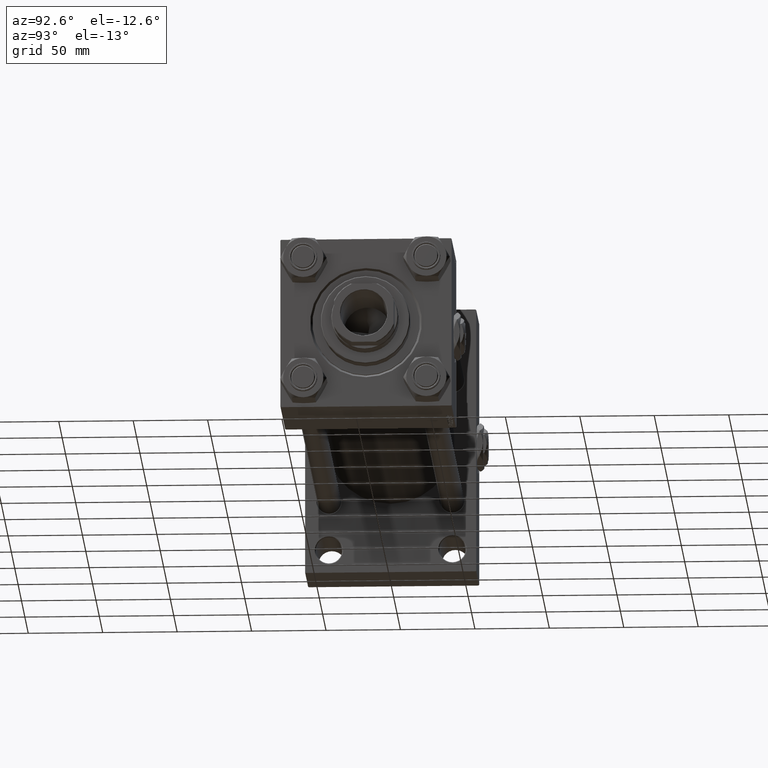
[diagram: clean part render]
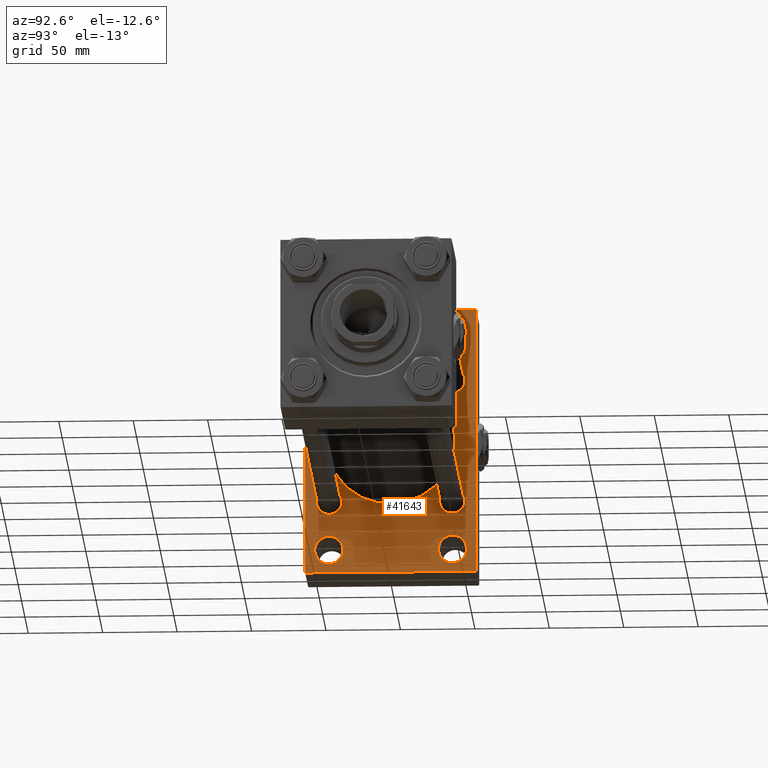
[diagram: same view with one face highlighted and labeled with its STEP entity id]
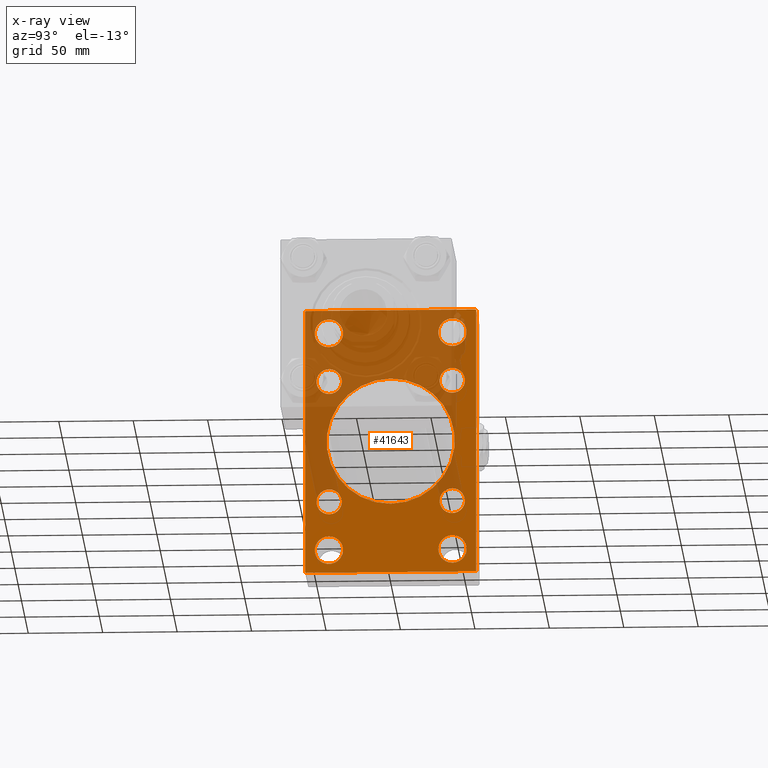
[diagram: x-ray of the same camera — body ghosted, the highlighted face saturated]
A machine part, auxiliary view. The second image highlights one B-rep face of the part: STEP entity #41643.
The next image is the same camera in x-ray: the body ghosted, the highlighted face saturated — about 48% of this face is hidden behind the body in this view.
In plain terms, the highlighted planar face has unit normal (-1, 0, 0).
Its self-contained STEP definition (entity closure, byte-faithful):
#151 = EDGE_CURVE ( 'NONE', #28061, #30598, #42466, .T. ) ;
#724 = CIRCLE ( 'NONE', #51602, 9.500000000000063949 ) ;
#966 = DIRECTION ( 'NONE',  ( -1.000000000000000000, 0.000000000000000000, -0.000000000000000000 ) ) ;
#1104 = CIRCLE ( 'NONE', #39231, 9.500000000000063949 ) ;
#1321 = EDGE_LOOP ( 'NONE', ( #48163, #22547 ) ) ;
#1960 = VECTOR ( 'NONE', #10304, 1000.000000000000000 ) ;
#2055 = CARTESIAN_POINT ( 'NONE',  ( 44.00000000000000000, 41.50000000000000711, 64.99999999999992895 ) ) ;
#2156 = LINE ( 'NONE', #41987, #17698 ) ;
#2229 = CARTESIAN_POINT ( 'NONE',  ( 43.99999999999998579, 2.663896022368408223E-15, -43.00000000000000000 ) ) ;
#2326 = CARTESIAN_POINT ( 'NONE',  ( 44.00000000000000000, -41.34999999999998721, 41.35000000000000853 ) ) ;
#2874 = CARTESIAN_POINT ( 'NONE',  ( 44.00000000000000000, 41.50000000000000711, -65.00000000000009948 ) ) ;
#2896 = AXIS2_PLACEMENT_3D ( 'NONE', #16641, #20630, #52248 ) ;
#2916 = AXIS2_PLACEMENT_3D ( 'NONE', #16988, #24695, #48611 ) ;
#2981 = AXIS2_PLACEMENT_3D ( 'NONE', #4252, #20426, #19889 ) ;
#3075 = CARTESIAN_POINT ( 'NONE',  ( 44.00000000000000000, 41.50000000000000711, 74.50000000000000000 ) ) ;
#3684 = FACE_OUTER_BOUND ( 'NONE', #10005, .T. ) ;
#3738 = EDGE_CURVE ( 'NONE', #51293, #32303, #34297, .T. ) ;
#3743 = EDGE_LOOP ( 'NONE', ( #34602, #31345 ) ) ;
#3875 = AXIS2_PLACEMENT_3D ( 'NONE', #6716, #14421, #51849 ) ;
#3909 = CIRCLE ( 'NONE', #36959, 8.500000000000007105 ) ;
#3968 = CIRCLE ( 'NONE', #49757, 8.500000000000007105 ) ;
#4115 = EDGE_CURVE ( 'NONE', #20034, #8645, #24970, .T. ) ;
#4252 = CARTESIAN_POINT ( 'NONE',  ( 44.00000000000000000, -41.34999999999998721, -41.35000000000000853 ) ) ;
#4348 = LINE ( 'NONE', #17065, #20033 ) ;
#4468 = VERTEX_POINT ( 'NONE', #10902 ) ;
#4519 = EDGE_CURVE ( 'NONE', #36005, #42173, #15628, .T. ) ;
#5057 = VERTEX_POINT ( 'NONE', #33940 ) ;
#5083 = EDGE_CURVE ( 'NONE', #35382, #34785, #47081, .T. ) ;
#5244 = CARTESIAN_POINT ( 'NONE',  ( 44.00000000000000000, -56.99999999999998579, -90.00000000000002842 ) ) ;
#5338 = ORIENTED_EDGE ( 'NONE', *, *, #4115, .T. ) ;
#6118 = ORIENTED_EDGE ( 'NONE', *, *, #151, .F. ) ;
#6554 = EDGE_CURVE ( 'NONE', #14966, #12991, #44575, .T. ) ;
#6620 = CARTESIAN_POINT ( 'NONE',  ( 44.00000000000000000, -57.49999999999999289, 89.50000000000001421 ) ) ;
#6716 = CARTESIAN_POINT ( 'NONE',  ( 44.00000000000000000, -41.50000000000000000, -74.50000000000000000 ) ) ;
#6842 = EDGE_CURVE ( 'NONE', #10500, #45635, #8098, .T. ) ;
#6987 = DIRECTION ( 'NONE',  ( -1.000000000000000000, 0.000000000000000000, -0.000000000000000000 ) ) ;
#7246 = DIRECTION ( 'NONE',  ( 0.000000000000000000, 0.000000000000000000, 1.000000000000000000 ) ) ;
#7450 = EDGE_CURVE ( 'NONE', #8354, #4468, #3909, .T. ) ;
#7985 = VERTEX_POINT ( 'NONE', #2055 ) ;
#7989 = ORIENTED_EDGE ( 'NONE', *, *, #43664, .T. ) ;
#8098 = CIRCLE ( 'NONE', #38616, 9.499999999999896971 ) ;
#8220 = CARTESIAN_POINT ( 'NONE',  ( 44.00000000000000000, -41.34999999999998721, 32.85000000000000142 ) ) ;
#8354 = VERTEX_POINT ( 'NONE', #39132 ) ;
#8523 = EDGE_CURVE ( 'NONE', #50140, #41739, #4348, .T. ) ;
#8580 = CIRCLE ( 'NONE', #49308, 8.500000000000007105 ) ;
#8645 = VERTEX_POINT ( 'NONE', #26360 ) ;
#9357 = DIRECTION ( 'NONE',  ( 0.000000000000000000, 0.7071067811865622277, -0.7071067811865328068 ) ) ;
#9402 = VERTEX_POINT ( 'NONE', #10668 ) ;
#9928 = DIRECTION ( 'NONE',  ( 0.000000000000000000, 0.000000000000000000, 1.000000000000000000 ) ) ;
#9959 = EDGE_LOOP ( 'NONE', ( #19303, #34629 ) ) ;
#10005 = EDGE_LOOP ( 'NONE', ( #44249, #31271, #6118, #24680, #7989, #20861, #46266, #17208 ) ) ;
#10109 = EDGE_CURVE ( 'NONE', #12991, #14966, #17583, .T. ) ;
#10304 = DIRECTION ( 'NONE',  ( 0.000000000000000000, 0.000000000000000000, -1.000000000000000000 ) ) ;
#10500 = VERTEX_POINT ( 'NONE', #2874 ) ;
#10668 = CARTESIAN_POINT ( 'NONE',  ( 44.00000000000000000, -57.00000000000001421, 89.99999999999998579 ) ) ;
#10902 = CARTESIAN_POINT ( 'NONE',  ( 44.00000000000000000, 41.34999999999999432, -32.84999999999999432 ) ) ;
#11361 = PLANE ( 'NONE',  #23533 ) ;
#11390 = AXIS2_PLACEMENT_3D ( 'NONE', #22337, #21284, #37487 ) ;
#11812 = CARTESIAN_POINT ( 'NONE',  ( 44.00000000000000000, -41.34999999999998721, 41.35000000000000853 ) ) ;
#11901 = DIRECTION ( 'NONE',  ( -1.000000000000000000, 0.000000000000000000, -0.000000000000000000 ) ) ;
#11904 = FACE_BOUND ( 'NONE', #47612, .T. ) ;
#11983 = DIRECTION ( 'NONE',  ( -0.000000000000000000, -0.7071067811865524577, -0.7071067811865426878 ) ) ;
#12435 = CARTESIAN_POINT ( 'NONE',  ( 44.00000000000000000, -41.34999999999998721, -32.85000000000000142 ) ) ;
#12991 = VERTEX_POINT ( 'NONE', #46597 ) ;
#13076 = VECTOR ( 'NONE', #48279, 1000.000000000000000 ) ;
#13274 = DIRECTION ( 'NONE',  ( -1.000000000000000000, 0.000000000000000000, -0.000000000000000000 ) ) ;
#13414 = ORIENTED_EDGE ( 'NONE', *, *, #23437, .T. ) ;
#13600 = DIRECTION ( 'NONE',  ( 0.000000000000000000, 0.000000000000000000, 1.000000000000000000 ) ) ;
#13629 = CIRCLE ( 'NONE', #41609, 9.499999999999896971 ) ;
#13750 = DIRECTION ( 'NONE',  ( 0.000000000000000000, 0.000000000000000000, 1.000000000000000000 ) ) ;
#13760 = EDGE_LOOP ( 'NONE', ( #24981, #28437 ) ) ;
#14261 = VECTOR ( 'NONE', #11983, 1000.000000000000000 ) ;
#14357 = CARTESIAN_POINT ( 'NONE',  ( 44.00000000000000000, 41.50000000000000711, -74.50000000000000000 ) ) ;
#14421 = DIRECTION ( 'NONE',  ( -1.000000000000000000, 0.000000000000000000, -0.000000000000000000 ) ) ;
#14542 = DIRECTION ( 'NONE',  ( 0.000000000000000000, -0.7071067811865279218, 0.7071067811865672237 ) ) ;
#14673 = EDGE_CURVE ( 'NONE', #36244, #30598, #25149, .T. ) ;
#14966 = VERTEX_POINT ( 'NONE', #32473 ) ;
#15379 = AXIS2_PLACEMENT_3D ( 'NONE', #2326, #42682, #34175 ) ;
#15628 = CIRCLE ( 'NONE', #2916, 8.500000000000007105 ) ;
#15868 = DIRECTION ( 'NONE',  ( 0.000000000000000000, 0.000000000000000000, 1.000000000000000000 ) ) ;
#15872 = DIRECTION ( 'NONE',  ( -0.000000000000000000, 0.000000000000000000, 1.000000000000000000 ) ) ;
#16225 = LINE ( 'NONE', #32158, #14261 ) ;
#16320 = EDGE_CURVE ( 'NONE', #9402, #16390, #16225, .T. ) ;
#16390 = VERTEX_POINT ( 'NONE', #6620 ) ;
#16641 = CARTESIAN_POINT ( 'NONE',  ( 43.99999999999998579, -2.602085213965210642E-15, 0.000000000000000000 ) ) ;
#16816 = EDGE_CURVE ( 'NONE', #46326, #7985, #724, .T. ) ;
#16936 = CARTESIAN_POINT ( 'NONE',  ( 44.00000000000000000, 57.50000000000000000, -89.50000000000000000 ) ) ;
#16988 = CARTESIAN_POINT ( 'NONE',  ( 44.00000000000000000, 41.34999999999999432, 41.35000000000000142 ) ) ;
#17065 = CARTESIAN_POINT ( 'NONE',  ( 44.00000000000000000, -56.99999999999998579, -90.00000000000002842 ) ) ;
#17208 = ORIENTED_EDGE ( 'NONE', *, *, #8523, .T. ) ;
#17298 = CIRCLE ( 'NONE', #24080, 8.500000000000007105 ) ;
#17583 = CIRCLE ( 'NONE', #36229, 9.499999999999896971 ) ;
#17628 = ORIENTED_EDGE ( 'NONE', *, *, #3738, .T. ) ;
#17657 = CARTESIAN_POINT ( 'NONE',  ( 44.00000000000000000, 41.34999999999999432, 49.85000000000001563 ) ) ;
#17665 = DIRECTION ( 'NONE',  ( 0.000000000000000000, 0.000000000000000000, 1.000000000000000000 ) ) ;
#17698 = VECTOR ( 'NONE', #42770, 1000.000000000000000 ) ;
#18256 = CARTESIAN_POINT ( 'NONE',  ( 43.99999999999998579, -2.602085213965210642E-15, 0.000000000000000000 ) ) ;
#18355 = ORIENTED_EDGE ( 'NONE', *, *, #27326, .T. ) ;
#18737 = DIRECTION ( 'NONE',  ( -1.000000000000000000, 0.000000000000000000, -0.000000000000000000 ) ) ;
#18854 = DIRECTION ( 'NONE',  ( -1.000000000000000000, 0.000000000000000000, -0.000000000000000000 ) ) ;
#18886 = AXIS2_PLACEMENT_3D ( 'NONE', #49022, #20585, #28034 ) ;
#19303 = ORIENTED_EDGE ( 'NONE', *, *, #30056, .F. ) ;
#19704 = EDGE_LOOP ( 'NONE', ( #47746, #44391 ) ) ;
#19855 = FACE_BOUND ( 'NONE', #43982, .T. ) ;
#19889 = DIRECTION ( 'NONE',  ( 0.000000000000000000, 0.000000000000000000, 1.000000000000000000 ) ) ;
#20033 = VECTOR ( 'NONE', #9357, 1000.000000000000000 ) ;
#20034 = VERTEX_POINT ( 'NONE', #42146 ) ;
#20124 = FACE_BOUND ( 'NONE', #40902, .T. ) ;
#20310 = LINE ( 'NONE', #34977, #47699 ) ;
#20426 = DIRECTION ( 'NONE',  ( -1.000000000000000000, 0.000000000000000000, -0.000000000000000000 ) ) ;
#20585 = DIRECTION ( 'NONE',  ( -1.000000000000000000, 0.000000000000000000, -0.000000000000000000 ) ) ;
#20630 = DIRECTION ( 'NONE',  ( 1.000000000000000000, -0.000000000000000000, 0.000000000000000000 ) ) ;
#20861 = ORIENTED_EDGE ( 'NONE', *, *, #16320, .T. ) ;
#20887 = CARTESIAN_POINT ( 'NONE',  ( 44.00000000000000000, -57.49999999999999289, 89.99999999999998579 ) ) ;
#21284 = DIRECTION ( 'NONE',  ( -1.000000000000000000, 0.000000000000000000, -0.000000000000000000 ) ) ;
#21295 = CARTESIAN_POINT ( 'NONE',  ( 44.00000000000000000, 41.50000000000000711, -74.50000000000000000 ) ) ;
#22142 = EDGE_CURVE ( 'NONE', #45635, #10500, #13629, .T. ) ;
#22265 = CARTESIAN_POINT ( 'NONE',  ( 44.00000000000000000, 57.50000000000000000, 90.00000000000000000 ) ) ;
#22337 = CARTESIAN_POINT ( 'NONE',  ( 44.00000000000000000, -41.34999999999998721, -41.35000000000000853 ) ) ;
#22547 = ORIENTED_EDGE ( 'NONE', *, *, #38824, .T. ) ;
#22792 = CARTESIAN_POINT ( 'NONE',  ( 44.00000000000000000, 57.50000000000000000, -90.00000000000000000 ) ) ;
#23241 = AXIS2_PLACEMENT_3D ( 'NONE', #34353, #34864, #9928 ) ;
#23437 = EDGE_CURVE ( 'NONE', #4468, #8354, #8580, .T. ) ;
#23533 = AXIS2_PLACEMENT_3D ( 'NONE', #27554, #36065, #15872 ) ;
#23715 = VERTEX_POINT ( 'NONE', #25151 ) ;
#23845 = FACE_BOUND ( 'NONE', #13760, .T. ) ;
#23868 = EDGE_CURVE ( 'NONE', #45702, #23715, #44225, .T. ) ;
#24080 = AXIS2_PLACEMENT_3D ( 'NONE', #11812, #48470, #39966 ) ;
#24376 = FACE_BOUND ( 'NONE', #9959, .T. ) ;
#24680 = ORIENTED_EDGE ( 'NONE', *, *, #25362, .T. ) ;
#24695 = DIRECTION ( 'NONE',  ( -1.000000000000000000, 0.000000000000000000, -0.000000000000000000 ) ) ;
#24970 = CIRCLE ( 'NONE', #23241, 9.500000000000063949 ) ;
#24981 = ORIENTED_EDGE ( 'NONE', *, *, #6554, .T. ) ;
#25149 = LINE ( 'NONE', #16936, #50675 ) ;
#25151 = CARTESIAN_POINT ( 'NONE',  ( 44.00000000000000000, -41.34999999999998721, 49.85000000000002274 ) ) ;
#25362 = EDGE_CURVE ( 'NONE', #28061, #5057, #20310, .T. ) ;
#25546 = DIRECTION ( 'NONE',  ( -1.000000000000000000, 0.000000000000000000, -0.000000000000000000 ) ) ;
#25625 = CARTESIAN_POINT ( 'NONE',  ( 44.00000000000000000, 41.50000000000000711, 74.50000000000000000 ) ) ;
#26360 = CARTESIAN_POINT ( 'NONE',  ( 44.00000000000000000, -41.50000000000000000, 64.99999999999992895 ) ) ;
#26463 = EDGE_CURVE ( 'NONE', #7985, #46326, #1104, .T. ) ;
#27326 = EDGE_CURVE ( 'NONE', #8645, #20034, #28212, .T. ) ;
#27554 = CARTESIAN_POINT ( 'NONE',  ( 44.00000000000000000, 0.000000000000000000, 0.000000000000000000 ) ) ;
#27825 = FACE_BOUND ( 'NONE', #52006, .T. ) ;
#28034 = DIRECTION ( 'NONE',  ( 0.000000000000000000, 0.000000000000000000, 1.000000000000000000 ) ) ;
#28061 = VERTEX_POINT ( 'NONE', #38778 ) ;
#28212 = CIRCLE ( 'NONE', #18886, 9.500000000000063949 ) ;
#28398 = CIRCLE ( 'NONE', #2981, 8.500000000000007105 ) ;
#28437 = ORIENTED_EDGE ( 'NONE', *, *, #10109, .T. ) ;
#28535 = CARTESIAN_POINT ( 'NONE',  ( 44.00000000000000000, 41.50000000000000711, 84.00000000000005684 ) ) ;
#28938 = CARTESIAN_POINT ( 'NONE',  ( 44.00000000000000000, 41.34999999999999432, -41.35000000000000142 ) ) ;
#29504 = EDGE_CURVE ( 'NONE', #23715, #45702, #17298, .T. ) ;
#30046 = EDGE_CURVE ( 'NONE', #16390, #50140, #40829, .T. ) ;
#30056 = EDGE_CURVE ( 'NONE', #34785, #35382, #42785, .T. ) ;
#30296 = CARTESIAN_POINT ( 'NONE',  ( 44.00000000000000000, 41.50000000000000711, -83.99999999999990052 ) ) ;
#30503 = LINE ( 'NONE', #22792, #43791 ) ;
#30598 = VERTEX_POINT ( 'NONE', #47132 ) ;
#31001 = CARTESIAN_POINT ( 'NONE',  ( 44.00000000000000000, 41.34999999999999432, 41.35000000000000142 ) ) ;
#31271 = ORIENTED_EDGE ( 'NONE', *, *, #14673, .T. ) ;
#31345 = ORIENTED_EDGE ( 'NONE', *, *, #6842, .T. ) ;
#31801 = FACE_BOUND ( 'NONE', #19704, .T. ) ;
#32158 = CARTESIAN_POINT ( 'NONE',  ( 44.00000000000000000, -57.49999999999999289, 89.50000000000001421 ) ) ;
#32191 = EDGE_CURVE ( 'NONE', #32303, #51293, #28398, .T. ) ;
#32303 = VERTEX_POINT ( 'NONE', #34725 ) ;
#32473 = CARTESIAN_POINT ( 'NONE',  ( 44.00000000000000000, -41.50000000000000000, -83.99999999999990052 ) ) ;
#33124 = DIRECTION ( 'NONE',  ( -0.000000000000000000, 0.7071067811865474617, 0.7071067811865474617 ) ) ;
#33491 = AXIS2_PLACEMENT_3D ( 'NONE', #18256, #34194, #13750 ) ;
#33940 = CARTESIAN_POINT ( 'NONE',  ( 44.00000000000000000, 57.00000000000000000, 90.00000000000000000 ) ) ;
#34175 = DIRECTION ( 'NONE',  ( 0.000000000000000000, 0.000000000000000000, 1.000000000000000000 ) ) ;
#34194 = DIRECTION ( 'NONE',  ( 1.000000000000000000, -0.000000000000000000, 0.000000000000000000 ) ) ;
#34297 = CIRCLE ( 'NONE', #11390, 8.500000000000007105 ) ;
#34353 = CARTESIAN_POINT ( 'NONE',  ( 44.00000000000000000, -41.50000000000000000, 74.50000000000000000 ) ) ;
#34602 = ORIENTED_EDGE ( 'NONE', *, *, #22142, .T. ) ;
#34615 = CARTESIAN_POINT ( 'NONE',  ( 44.00000000000000000, -41.50000000000000000, -74.50000000000000000 ) ) ;
#34629 = ORIENTED_EDGE ( 'NONE', *, *, #5083, .F. ) ;
#34725 = CARTESIAN_POINT ( 'NONE',  ( 44.00000000000000000, -41.34999999999998721, -49.85000000000002274 ) ) ;
#34759 = ORIENTED_EDGE ( 'NONE', *, *, #29504, .T. ) ;
#34785 = VERTEX_POINT ( 'NONE', #36625 ) ;
#34864 = DIRECTION ( 'NONE',  ( -1.000000000000000000, 0.000000000000000000, -0.000000000000000000 ) ) ;
#34923 = DIRECTION ( 'NONE',  ( 0.000000000000000000, 0.000000000000000000, 1.000000000000000000 ) ) ;
#34977 = CARTESIAN_POINT ( 'NONE',  ( 44.00000000000000000, 57.00000000000000000, 90.00000000000000000 ) ) ;
#35382 = VERTEX_POINT ( 'NONE', #2229 ) ;
#36005 = VERTEX_POINT ( 'NONE', #49317 ) ;
#36065 = DIRECTION ( 'NONE',  ( -1.000000000000000000, 0.000000000000000000, -0.000000000000000000 ) ) ;
#36229 = AXIS2_PLACEMENT_3D ( 'NONE', #34615, #50057, #46332 ) ;
#36244 = VERTEX_POINT ( 'NONE', #46321 ) ;
#36625 = CARTESIAN_POINT ( 'NONE',  ( 43.99999999999998579, -2.602085213965210642E-15, 43.00000000000000000 ) ) ;
#36959 = AXIS2_PLACEMENT_3D ( 'NONE', #28938, #6987, #7246 ) ;
#37450 = DIRECTION ( 'NONE',  ( 0.000000000000000000, 0.000000000000000000, 1.000000000000000000 ) ) ;
#37487 = DIRECTION ( 'NONE',  ( 0.000000000000000000, 0.000000000000000000, 1.000000000000000000 ) ) ;
#38616 = AXIS2_PLACEMENT_3D ( 'NONE', #14357, #18854, #46774 ) ;
#38778 = CARTESIAN_POINT ( 'NONE',  ( 44.00000000000000000, 57.50000000000000000, 89.49999999999997158 ) ) ;
#38805 = EDGE_CURVE ( 'NONE', #36244, #41739, #30503, .T. ) ;
#38824 = EDGE_CURVE ( 'NONE', #42173, #36005, #3968, .T. ) ;
#39132 = CARTESIAN_POINT ( 'NONE',  ( 44.00000000000000000, 41.34999999999999432, -49.85000000000001563 ) ) ;
#39231 = AXIS2_PLACEMENT_3D ( 'NONE', #3075, #18737, #34923 ) ;
#39966 = DIRECTION ( 'NONE',  ( 0.000000000000000000, 0.000000000000000000, 1.000000000000000000 ) ) ;
#40053 = FACE_BOUND ( 'NONE', #3743, .T. ) ;
#40829 = LINE ( 'NONE', #20887, #13076 ) ;
#40902 = EDGE_LOOP ( 'NONE', ( #49129, #13414 ) ) ;
#41609 = AXIS2_PLACEMENT_3D ( 'NONE', #21295, #25546, #13600 ) ;
#41643 = ADVANCED_FACE ( 'NONE', ( #31801, #11904, #23845, #40053, #27825, #20124, #19855, #47754, #24376, #3684 ), #11361, .F. ) ;
#41712 = CARTESIAN_POINT ( 'NONE',  ( 44.00000000000000000, 41.34999999999999432, -41.35000000000000142 ) ) ;
#41739 = VERTEX_POINT ( 'NONE', #5244 ) ;
#41987 = CARTESIAN_POINT ( 'NONE',  ( 44.00000000000000000, 57.50000000000000000, 90.00000000000000000 ) ) ;
#42146 = CARTESIAN_POINT ( 'NONE',  ( 44.00000000000000000, -41.50000000000000000, 84.00000000000005684 ) ) ;
#42173 = VERTEX_POINT ( 'NONE', #17657 ) ;
#42466 = LINE ( 'NONE', #22265, #1960 ) ;
#42682 = DIRECTION ( 'NONE',  ( -1.000000000000000000, 0.000000000000000000, -0.000000000000000000 ) ) ;
#42770 = DIRECTION ( 'NONE',  ( 0.000000000000000000, -1.000000000000000000, -1.206764157201257291E-16 ) ) ;
#42785 = CIRCLE ( 'NONE', #2896, 43.00000000000000000 ) ;
#43582 = CARTESIAN_POINT ( 'NONE',  ( 44.00000000000000000, -57.49999999999999289, -89.49999999999998579 ) ) ;
#43664 = EDGE_CURVE ( 'NONE', #5057, #9402, #2156, .T. ) ;
#43791 = VECTOR ( 'NONE', #46727, 1000.000000000000000 ) ;
#43982 = EDGE_LOOP ( 'NONE', ( #51297, #34759 ) ) ;
#44225 = CIRCLE ( 'NONE', #15379, 8.500000000000007105 ) ;
#44249 = ORIENTED_EDGE ( 'NONE', *, *, #38805, .F. ) ;
#44391 = ORIENTED_EDGE ( 'NONE', *, *, #16816, .T. ) ;
#44575 = CIRCLE ( 'NONE', #3875, 9.499999999999896971 ) ;
#45635 = VERTEX_POINT ( 'NONE', #30296 ) ;
#45702 = VERTEX_POINT ( 'NONE', #8220 ) ;
#46266 = ORIENTED_EDGE ( 'NONE', *, *, #30046, .T. ) ;
#46321 = CARTESIAN_POINT ( 'NONE',  ( 44.00000000000000000, 57.00000000000000000, -90.00000000000000000 ) ) ;
#46326 = VERTEX_POINT ( 'NONE', #28535 ) ;
#46332 = DIRECTION ( 'NONE',  ( 0.000000000000000000, 0.000000000000000000, 1.000000000000000000 ) ) ;
#46597 = CARTESIAN_POINT ( 'NONE',  ( 44.00000000000000000, -41.50000000000000000, -65.00000000000009948 ) ) ;
#46727 = DIRECTION ( 'NONE',  ( 0.000000000000000000, -1.000000000000000000, -2.413528314402514583E-16 ) ) ;
#46774 = DIRECTION ( 'NONE',  ( 0.000000000000000000, 0.000000000000000000, 1.000000000000000000 ) ) ;
#47081 = CIRCLE ( 'NONE', #33491, 43.00000000000000000 ) ;
#47132 = CARTESIAN_POINT ( 'NONE',  ( 44.00000000000000000, 57.50000000000000000, -89.49999999999994316 ) ) ;
#47612 = EDGE_LOOP ( 'NONE', ( #18355, #5338 ) ) ;
#47699 = VECTOR ( 'NONE', #14542, 1000.000000000000000 ) ;
#47746 = ORIENTED_EDGE ( 'NONE', *, *, #26463, .T. ) ;
#47754 = FACE_BOUND ( 'NONE', #1321, .T. ) ;
#48163 = ORIENTED_EDGE ( 'NONE', *, *, #4519, .T. ) ;
#48279 = DIRECTION ( 'NONE',  ( 0.000000000000000000, 0.000000000000000000, -1.000000000000000000 ) ) ;
#48470 = DIRECTION ( 'NONE',  ( -1.000000000000000000, 0.000000000000000000, -0.000000000000000000 ) ) ;
#48583 = ORIENTED_EDGE ( 'NONE', *, *, #32191, .T. ) ;
#48611 = DIRECTION ( 'NONE',  ( 0.000000000000000000, 0.000000000000000000, 1.000000000000000000 ) ) ;
#49022 = CARTESIAN_POINT ( 'NONE',  ( 44.00000000000000000, -41.50000000000000000, 74.50000000000000000 ) ) ;
#49129 = ORIENTED_EDGE ( 'NONE', *, *, #7450, .T. ) ;
#49308 = AXIS2_PLACEMENT_3D ( 'NONE', #41712, #13274, #37450 ) ;
#49317 = CARTESIAN_POINT ( 'NONE',  ( 44.00000000000000000, 41.34999999999999432, 32.84999999999999432 ) ) ;
#49757 = AXIS2_PLACEMENT_3D ( 'NONE', #31001, #11901, #15868 ) ;
#50057 = DIRECTION ( 'NONE',  ( -1.000000000000000000, 0.000000000000000000, -0.000000000000000000 ) ) ;
#50140 = VERTEX_POINT ( 'NONE', #43582 ) ;
#50675 = VECTOR ( 'NONE', #33124, 1000.000000000000114 ) ;
#51293 = VERTEX_POINT ( 'NONE', #12435 ) ;
#51297 = ORIENTED_EDGE ( 'NONE', *, *, #23868, .T. ) ;
#51602 = AXIS2_PLACEMENT_3D ( 'NONE', #25625, #966, #17665 ) ;
#51849 = DIRECTION ( 'NONE',  ( 0.000000000000000000, 0.000000000000000000, 1.000000000000000000 ) ) ;
#52006 = EDGE_LOOP ( 'NONE', ( #48583, #17628 ) ) ;
#52248 = DIRECTION ( 'NONE',  ( 0.000000000000000000, 0.000000000000000000, 1.000000000000000000 ) ) ;